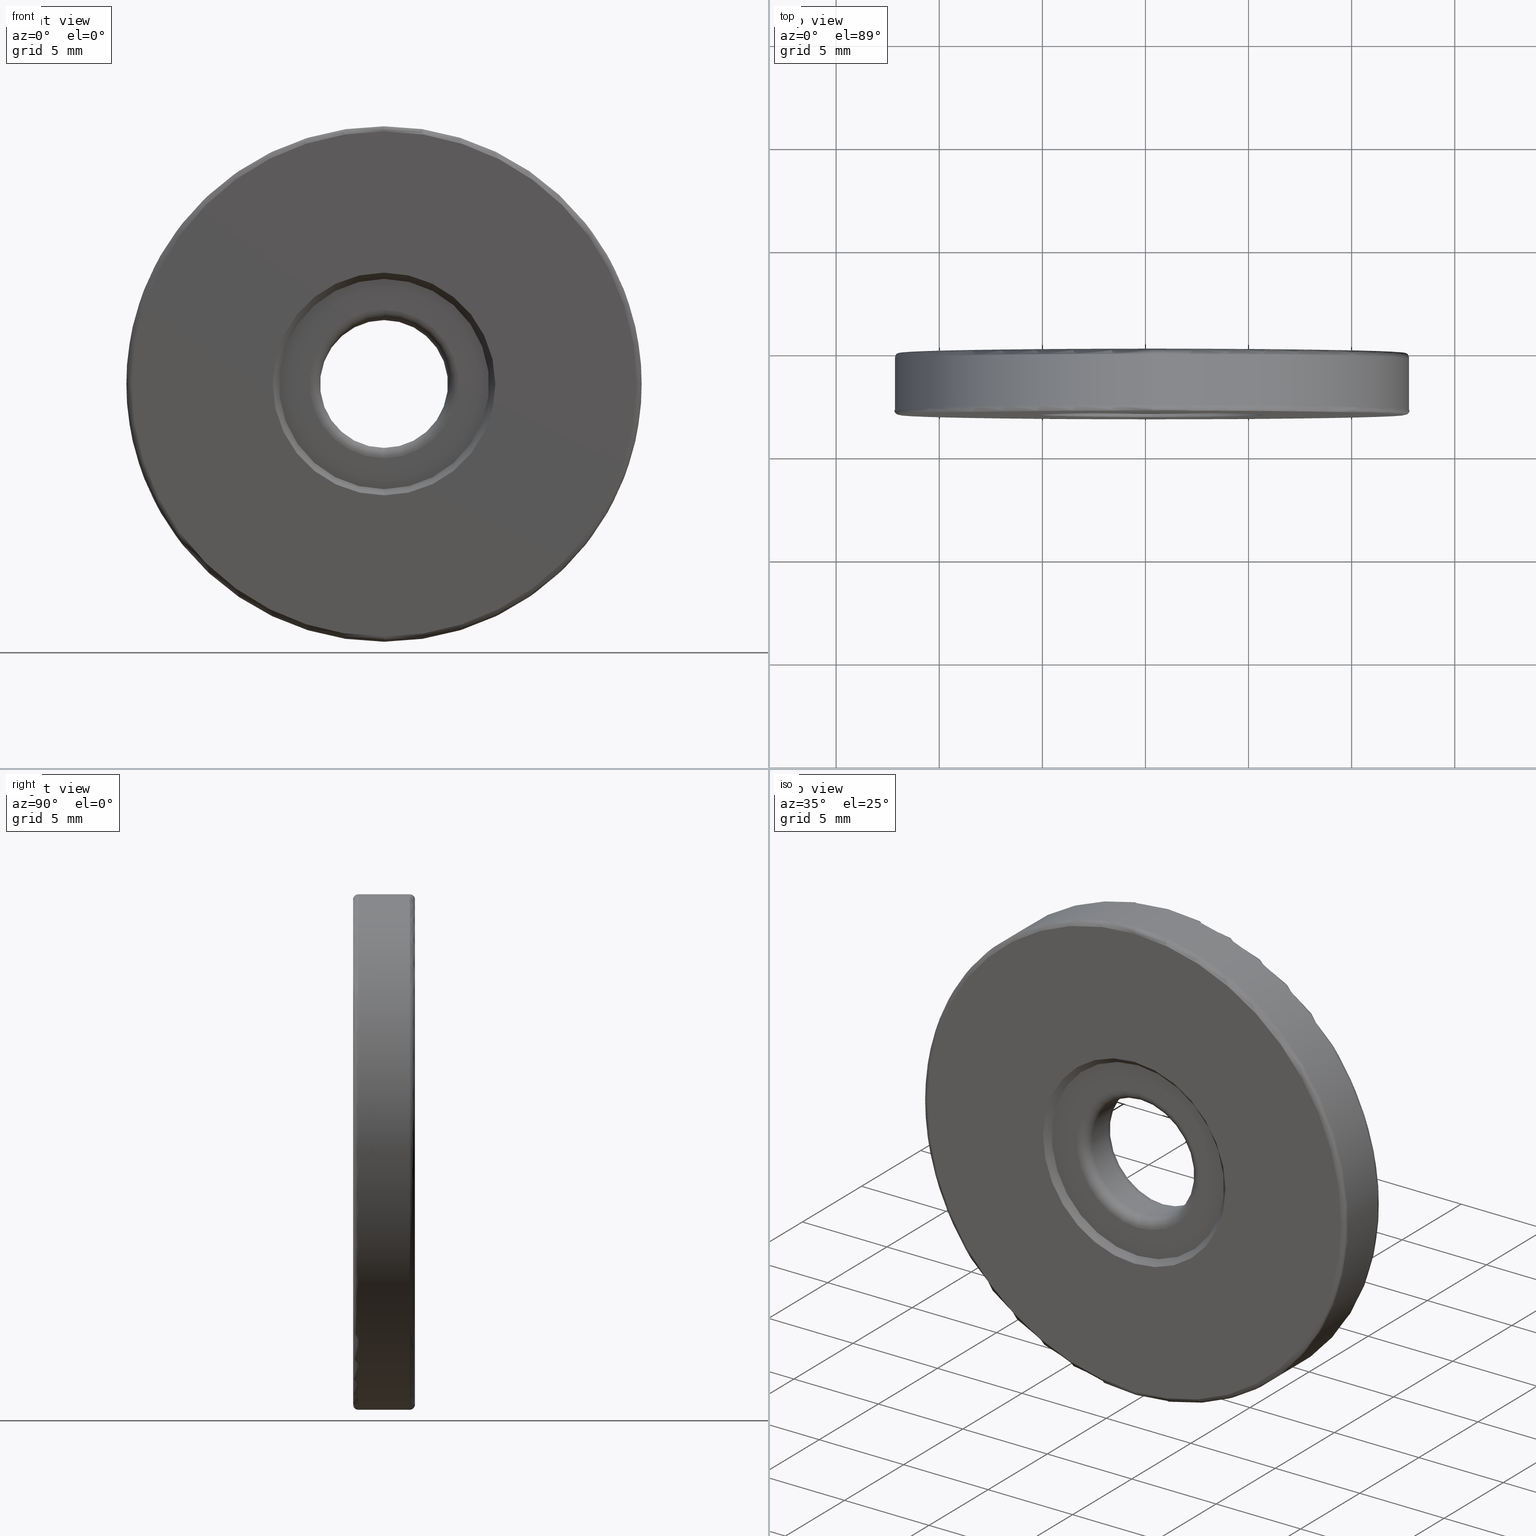
[diagram: canonical four-view strip — front | top / right | iso, engineering-drawing reading convention]
A machine part, canonical four-view strip (front | top / right | iso — engineering-drawing reading convention). The complete STEP part file that produces these views, byte-faithful:
ISO-10303-21;
HEADER;
FILE_DESCRIPTION (( 'STEP AP203' ),
    '1' );
FILE_NAME ('1.4.2.103_ZGH-25-DK3.STEP',
    '2022-04-15T02:59:58',
    ( '' ),
    ( '' ),
    'SwSTEP 2.0',
    'SolidWorks 2021',
    '' );
FILE_SCHEMA (( 'CONFIG_CONTROL_DESIGN' ));
ENDSEC;

DATA;
#1 = ADVANCED_FACE ( 'NONE', ( #280 ), #407, .F. ) ;
#2 = CARTESIAN_POINT ( 'NONE',  ( -4.682026255059964726, -0.8949759769982746915, 25.00000000000000000 ) ) ;
#3 = AXIS2_PLACEMENT_3D ( 'NONE', #2, #376, #240 ) ;
#4 = AXIS2_PLACEMENT_3D ( 'NONE', #454, #137, #366 ) ;
#5 = APPROVAL_PERSON_ORGANIZATION ( #488, #527, #121 ) ;
#6 = EDGE_CURVE ( 'NONE', #191, #129, #316, .T. ) ;
#7 = CARTESIAN_POINT ( 'NONE',  ( -4.682026255059964726, -0.8949759769982746915, 28.60000000000000142 ) ) ;
#8 = DIRECTION ( 'NONE',  ( 0.0000000000000000000, 0.0000000000000000000, -1.000000000000000000 ) ) ;
#9 = VERTEX_POINT ( 'NONE', #367 ) ;
#10 = FACE_BOUND ( 'NONE', #63, .T. ) ;
#11 = DIRECTION ( 'NONE',  ( 0.0000000000000000000, -1.000000000000000000, 0.0000000000000000000 ) ) ;
#12 = PERSON_AND_ORGANIZATION_ROLE ( 'creator' ) ;
#13 = CIRCLE ( 'NONE', #274, 3.599999999999999201 ) ;
#14 = DIRECTION ( 'NONE',  ( 0.0000000000000000000, 0.0000000000000000000, 1.000000000000000000 ) ) ;
#15 = DIRECTION ( 'NONE',  ( 0.0000000000000000000, 1.000000000000000000, 0.0000000000000000000 ) ) ;
#16 = ORIENTED_EDGE ( 'NONE', *, *, #455, .F. ) ;
#17 = EDGE_CURVE ( 'NONE', #451, #68, #478, .T. ) ;
#18 = CARTESIAN_POINT ( 'NONE',  ( -4.682026255059964726, -3.094975976998274536, 25.00000000000000000 ) ) ;
#19 = ORIENTED_EDGE ( 'NONE', *, *, #507, .T. ) ;
#20 = APPROVAL_ROLE ( '' ) ;
#21 = CARTESIAN_POINT ( 'NONE',  ( -4.682026255059964726, -3.094975976998274536, 19.59999999999999787 ) ) ;
#22 = VECTOR ( 'NONE', #591, 1000.000000000000000 ) ;
#23 = VECTOR ( 'NONE', #89, 1000.000000000000114 ) ;
#24 = ORIENTED_EDGE ( 'NONE', *, *, #409, .F. ) ;
#25 = PERSON_AND_ORGANIZATION_ROLE ( 'classification_officer' ) ;
#26 = EDGE_CURVE ( 'NONE', #68, #451, #173, .T. ) ;
#27 = FACE_OUTER_BOUND ( 'NONE', #290, .T. ) ;
#28 = VERTEX_POINT ( 'NONE', #466 ) ;
#29 = CARTESIAN_POINT ( 'NONE',  ( -4.682026255059964726, -0.09497597699827478590, 25.00000000000000000 ) ) ;
#30 = ORIENTED_EDGE ( 'NONE', *, *, #176, .T. ) ;
#31 = CARTESIAN_POINT ( 'NONE',  ( -4.682026255059963837, -2.794975976998274714, 30.10000000000000142 ) ) ;
#32 = CARTESIAN_POINT ( 'NONE',  ( -4.682026255059964726, -0.3449759769982747581, 25.00000000000000000 ) ) ;
#33 = AXIS2_PLACEMENT_3D ( 'NONE', #196, #299, #420 ) ;
#34 = CIRCLE ( 'NONE', #380, 0.5000000000000004441 ) ;
#35 = DIRECTION ( 'NONE',  ( 0.0000000000000000000, -1.000000000000000000, 0.0000000000000000000 ) ) ;
#36 = EDGE_LOOP ( 'NONE', ( #419, #358, #175, #423 ) ) ;
#37 = CARTESIAN_POINT ( 'NONE',  ( -4.682026255059964726, -2.794975976998274714, 21.40000000000000213 ) ) ;
#38 = ORIENTED_EDGE ( 'NONE', *, *, #368, .F. ) ;
#39 = CARTESIAN_POINT ( 'NONE',  ( -4.682026255059964726, -2.294975976998275158, 25.00000000000000000 ) ) ;
#40 = AXIS2_PLACEMENT_3D ( 'NONE', #528, #105, #387 ) ;
#41 = CC_DESIGN_SECURITY_CLASSIFICATION ( #232, ( #75 ) ) ;
#42 = ADVANCED_FACE ( 'NONE', ( #186 ), #163, .T. ) ;
#43 = ORIENTED_EDGE ( 'NONE', *, *, #308, .T. ) ;
#44 = APPROVAL ( #346, 'δָ��' ) ;
#45 = PERSON ( 'δָ��', 'δָ��', 'δָ��', ('δָ��'), ('δָ��'), ('δָ��') ) ;
#46 = ORIENTED_EDGE ( 'NONE', *, *, #139, .F. ) ;
#47 = DIRECTION ( 'NONE',  ( 0.0000000000000000000, -1.000000000000000000, 0.0000000000000000000 ) ) ;
#48 = EDGE_LOOP ( 'NONE', ( #453, #330 ) ) ;
#49 = ADVANCED_FACE ( 'NONE', ( #149 ), #342, .F. ) ;
#50 = VECTOR ( 'NONE', #581, 1000.000000000000114 ) ;
#51 = AXIS2_PLACEMENT_3D ( 'NONE', #91, #285, #526 ) ;
#52 = FACE_OUTER_BOUND ( 'NONE', #553, .T. ) ;
#53 = CARTESIAN_POINT ( 'NONE',  ( -4.682026255059964726, -0.3949759769982746915, 25.00000000000000000 ) ) ;
#54 = ORIENTED_EDGE ( 'NONE', *, *, #212, .T. ) ;
#55 = DIRECTION ( 'NONE',  ( 1.000000000000000000, -0.0000000000000000000, 1.224646799147353207E-16 ) ) ;
#56 = CARTESIAN_POINT ( 'NONE',  ( -4.682026255059964726, -3.094975976998274536, 25.00000000000000000 ) ) ;
#57 = CARTESIAN_POINT ( 'NONE',  ( -4.682026255059964726, -3.094975976998274536, 19.59999999999999787 ) ) ;
#58 = SHAPE_DEFINITION_REPRESENTATION ( #405, #361 ) ;
#59 = OPEN_SHELL ( 'NONE', ( #1, #61, #130, #276, #516, #42, #295, #109, #119, #349, #49, #555, #572, #81, #535, #476, #164, #182, #418, #157 ) ) ;
#60 = CARTESIAN_POINT ( 'NONE',  ( -4.682026255059964726, -3.094975976998274536, 25.00000000000000000 ) ) ;
#61 = ADVANCED_FACE ( 'NONE', ( #146 ), #520, .T. ) ;
#62 =( GEOMETRIC_REPRESENTATION_CONTEXT ( 3 ) GLOBAL_UNCERTAINTY_ASSIGNED_CONTEXT ( ( #561 ) ) GLOBAL_UNIT_ASSIGNED_CONTEXT ( ( #341, #521, #529 ) ) REPRESENTATION_CONTEXT ( 'NONE', 'WORKASPACE' ) );
#63 = EDGE_LOOP ( 'NONE', ( #30, #43 ) ) ;
#64 = CALENDAR_DATE ( 2022, 15, 4 ) ;
#65 = PRODUCT_RELATED_PRODUCT_CATEGORY ( 'detail', '', ( #414 ) ) ;
#66 = ORIENTED_EDGE ( 'NONE', *, *, #268, .F. ) ;
#67 = LINE ( 'NONE', #394, #425 ) ;
#68 = VERTEX_POINT ( 'NONE', #289 ) ;
#69 = EDGE_CURVE ( 'NONE', #393, #9, #97, .T. ) ;
#70 = DATE_AND_TIME ( #590, #194 ) ;
#71 = CYLINDRICAL_SURFACE ( 'NONE', #282, 3.099999999999998757 ) ;
#72 = AXIS2_PLACEMENT_3D ( 'NONE', #586, #190, #571 ) ;
#73 = CIRCLE ( 'NONE', #305, 3.099999999999998757 ) ;
#74 = ORIENTED_EDGE ( 'NONE', *, *, #176, .F. ) ;
#75 = PRODUCT_DEFINITION_FORMATION_WITH_SPECIFIED_SOURCE ( '�κ�', '', #414, .NOT_KNOWN. ) ;
#76 = DIRECTION ( 'NONE',  ( 0.0000000000000000000, 0.0000000000000000000, 1.000000000000000000 ) ) ;
#77 = ORIENTED_EDGE ( 'NONE', *, *, #381, .T. ) ;
#78 = CARTESIAN_POINT ( 'NONE',  ( -4.682026255059964726, -0.3449759769982747581, 37.25000000000000711 ) ) ;
#79 = DIRECTION ( 'NONE',  ( 0.0000000000000000000, 0.0000000000000000000, -1.000000000000000000 ) ) ;
#80 = CARTESIAN_POINT ( 'NONE',  ( -4.682026255059964726, -0.3949759769982755797, 25.00000000000000000 ) ) ;
#81 = ADVANCED_FACE ( 'NONE', ( #296 ), #183, .F. ) ;
#82 = DIRECTION ( 'NONE',  ( -0.0000000000000000000, 1.000000000000000000, -0.0000000000000000000 ) ) ;
#83 = CIRCLE ( 'NONE', #427, 0.2500000000000002220 ) ;
#84 = CC_DESIGN_APPROVAL ( #527, ( #232 ) ) ;
#85 = CARTESIAN_POINT ( 'NONE',  ( -4.682026255059964726, -0.3949759769982746915, 25.00000000000000000 ) ) ;
#86 = ORIENTED_EDGE ( 'NONE', *, *, #278, .F. ) ;
#87 = CC_DESIGN_PERSON_AND_ORGANIZATION_ASSIGNMENT ( #537, #110, ( #75 ) ) ;
#88 = APPLICATION_CONTEXT ( 'configuration controlled 3d designs of mechanical parts and assemblies' ) ;
#89 = DIRECTION ( 'NONE',  ( 8.659560562355009279E-17, 0.7071067811865413555, -0.7071067811865536790 ) ) ;
#90 = DIRECTION ( 'NONE',  ( 0.0000000000000000000, 0.0000000000000000000, -1.000000000000000000 ) ) ;
#91 = CARTESIAN_POINT ( 'NONE',  ( -4.682026255059964726, -0.09497597699827478590, 25.00000000000000000 ) ) ;
#92 = EDGE_LOOP ( 'NONE', ( #614, #600, #431, #328 ) ) ;
#93 = AXIS2_PLACEMENT_3D ( 'NONE', #333, #245, #287 ) ;
#94 = CIRCLE ( 'NONE', #417, 0.5000000000000004441 ) ;
#95 = CC_DESIGN_PERSON_AND_ORGANIZATION_ASSIGNMENT ( #312, #12, ( #75 ) ) ;
#96 = DIRECTION ( 'NONE',  ( 0.0000000000000000000, 0.0000000000000000000, 1.000000000000000000 ) ) ;
#97 = LINE ( 'NONE', #234, #50 ) ;
#98 = FACE_OUTER_BOUND ( 'NONE', #48, .T. ) ;
#99 = CARTESIAN_POINT ( 'NONE',  ( -4.682026255059964726, -0.09497597699827478590, 25.00000000000000000 ) ) ;
#100 = DIRECTION ( 'NONE',  ( 0.0000000000000000000, 0.0000000000000000000, -1.000000000000000000 ) ) ;
#101 = CC_DESIGN_DATE_AND_TIME_ASSIGNMENT ( #597, #117, ( #232 ) ) ;
#102 = ORIENTED_EDGE ( 'NONE', *, *, #219, .T. ) ;
#103 = VECTOR ( 'NONE', #402, 1000.000000000000114 ) ;
#104 = TOROIDAL_SURFACE ( 'NONE', #4, 12.25000000000000000, 0.2500000000000000000 ) ;
#105 = DIRECTION ( 'NONE',  ( 0.0000000000000000000, 1.000000000000000000, 0.0000000000000000000 ) ) ;
#106 = COORDINATED_UNIVERSAL_TIME_OFFSET ( 8, 0, .AHEAD. ) ;
#107 = CARTESIAN_POINT ( 'NONE',  ( -4.682026255059964726, -0.3449759769982747581, 37.50000000000000711 ) ) ;
#108 = VERTEX_POINT ( 'NONE', #385 ) ;
#109 = ADVANCED_FACE ( 'NONE', ( #484 ), #512, .T. ) ;
#110 = PERSON_AND_ORGANIZATION_ROLE ( 'design_supplier' ) ;
#111 = CARTESIAN_POINT ( 'NONE',  ( -4.682026255059964726, -2.794975976998274714, 19.90000000000000213 ) ) ;
#112 = ORIENTED_EDGE ( 'NONE', *, *, #582, .T. ) ;
#113 = AXIS2_PLACEMENT_3D ( 'NONE', #32, #184, #609 ) ;
#114 = CIRCLE ( 'NONE', #458, 5.400000000000005684 ) ;
#115 = DIRECTION ( 'NONE',  ( -0.0000000000000000000, 1.000000000000000000, -0.0000000000000000000 ) ) ;
#116 = EDGE_LOOP ( 'NONE', ( #303, #487 ) ) ;
#117 = DATE_TIME_ROLE ( 'classification_date' ) ;
#118 = CARTESIAN_POINT ( 'NONE',  ( -4.682026255059964726, -0.3949759769982755797, 30.10000000000000142 ) ) ;
#119 = ADVANCED_FACE ( 'NONE', ( #525, #523 ), #536, .T. ) ;
#120 = VERTEX_POINT ( 'NONE', #578 ) ;
#121 = APPROVAL_ROLE ( '' ) ;
#122 = DIRECTION ( 'NONE',  ( 0.0000000000000000000, 1.000000000000000000, 0.0000000000000000000 ) ) ;
#123 = EDGE_LOOP ( 'NONE', ( #258, #506, #568, #551 ) ) ;
#124 = CARTESIAN_POINT ( 'NONE',  ( -4.682026255059964726, -0.3449759769982747581, 25.00000000000000000 ) ) ;
#125 = AXIS2_PLACEMENT_3D ( 'NONE', #56, #532, #430 ) ;
#126 = AXIS2_PLACEMENT_3D ( 'NONE', #177, #374, #279 ) ;
#127 = ORIENTED_EDGE ( 'NONE', *, *, #409, .T. ) ;
#128 = DIRECTION ( 'NONE',  ( 0.0000000000000000000, 0.0000000000000000000, 1.000000000000000000 ) ) ;
#129 = VERTEX_POINT ( 'NONE', #475 ) ;
#130 = ADVANCED_FACE ( 'NONE', ( #472 ), #199, .T. ) ;
#131 = DIRECTION ( 'NONE',  ( 0.0000000000000000000, 0.0000000000000000000, 1.000000000000000000 ) ) ;
#132 = ORIENTED_EDGE ( 'NONE', *, *, #391, .T. ) ;
#133 = DIRECTION ( 'NONE',  ( 0.0000000000000000000, 0.0000000000000000000, 1.000000000000000000 ) ) ;
#134 = CONICAL_SURFACE ( 'NONE', #502, 5.400000000000002132, 0.7853981633974439491 ) ;
#135 = ORIENTED_EDGE ( 'NONE', *, *, #219, .F. ) ;
#136 = CIRCLE ( 'NONE', #353, 5.400000000000005684 ) ;
#137 = DIRECTION ( 'NONE',  ( 0.0000000000000000000, 1.000000000000000000, 0.0000000000000000000 ) ) ;
#138 = ORIENTED_EDGE ( 'NONE', *, *, #507, .F. ) ;
#139 = EDGE_CURVE ( 'NONE', #340, #393, #323, .T. ) ;
#140 = FACE_OUTER_BOUND ( 'NONE', #200, .T. ) ;
#141 = CARTESIAN_POINT ( 'NONE',  ( -4.682026255059964726, -3.094975976998274536, 25.00000000000000000 ) ) ;
#142 = CARTESIAN_POINT ( 'NONE',  ( -4.682026255059964726, -2.794975976998274714, 25.00000000000000000 ) ) ;
#143 = CIRCLE ( 'NONE', #213, 0.2500000000000002220 ) ;
#144 = AXIS2_PLACEMENT_3D ( 'NONE', #269, #569, #271 ) ;
#145 = DIRECTION ( 'NONE',  ( 0.0000000000000000000, 0.0000000000000000000, 1.000000000000000000 ) ) ;
#146 = FACE_OUTER_BOUND ( 'NONE', #36, .T. ) ;
#147 = VERTEX_POINT ( 'NONE', #383 ) ;
#148 = PLANE ( 'NONE',  #51 ) ;
#149 = FACE_OUTER_BOUND ( 'NONE', #92, .T. ) ;
#150 = ORIENTED_EDGE ( 'NONE', *, *, #548, .F. ) ;
#151 = DIRECTION ( 'NONE',  ( -0.0000000000000000000, -1.000000000000000000, -0.0000000000000000000 ) ) ;
#152 = APPROVAL ( #306, 'δָ��' ) ;
#153 = CARTESIAN_POINT ( 'NONE',  ( -4.682026255059964726, -3.094975976998274536, 25.00000000000000000 ) ) ;
#154 = VECTOR ( 'NONE', #254, 1000.000000000000114 ) ;
#155 = CIRCLE ( 'NONE', #574, 3.099999999999998757 ) ;
#156 = DIRECTION ( 'NONE',  ( -0.0000000000000000000, -1.000000000000000000, -0.0000000000000000000 ) ) ;
#157 = ADVANCED_FACE ( 'NONE', ( #292 ), #134, .F. ) ;
#158 = DATE_TIME_ROLE ( 'creation_date' ) ;
#159 = CARTESIAN_POINT ( 'NONE',  ( -4.682026255059962949, -2.844975976998274536, 12.75000000000000178 ) ) ;
#160 = DIRECTION ( 'NONE',  ( 0.0000000000000000000, 0.0000000000000000000, 1.000000000000000000 ) ) ;
#161 = VERTEX_POINT ( 'NONE', #379 ) ;
#162 = APPROVAL_STATUS ( 'not_yet_approved' ) ;
#163 = TOROIDAL_SURFACE ( 'NONE', #3, 3.600000000000000089, 0.5000000000000000000 ) ;
#164 = ADVANCED_FACE ( 'NONE', ( #480 ), #576, .T. ) ;
#165 = DIRECTION ( 'NONE',  ( 0.0000000000000000000, 1.000000000000000000, 0.0000000000000000000 ) ) ;
#166 = ORIENTED_EDGE ( 'NONE', *, *, #339, .F. ) ;
#167 = APPROVAL_DATE_TIME ( #449, #152 ) ;
#168 = DIRECTION ( 'NONE',  ( 0.0000000000000000000, 0.0000000000000000000, -1.000000000000000000 ) ) ;
#169 = ORIENTED_EDGE ( 'NONE', *, *, #139, .T. ) ;
#170 = LINE ( 'NONE', #118, #103 ) ;
#171 = EDGE_LOOP ( 'NONE', ( #283, #482, #477, #442 ) ) ;
#172 = DIRECTION ( 'NONE',  ( 0.0000000000000000000, 0.0000000000000000000, 1.000000000000000000 ) ) ;
#173 = CIRCLE ( 'NONE', #437, 3.599999999999999201 ) ;
#174 = CIRCLE ( 'NONE', #144, 3.099999999999998757 ) ;
#175 = ORIENTED_EDGE ( 'NONE', *, *, #197, .F. ) ;
#176 = EDGE_CURVE ( 'NONE', #606, #360, #530, .T. ) ;
#177 = CARTESIAN_POINT ( 'NONE',  ( -4.682026255059964726, -2.294975976998275158, 25.00000000000000000 ) ) ;
#178 = CC_DESIGN_PERSON_AND_ORGANIZATION_ASSIGNMENT ( #587, #540, ( #441 ) ) ;
#179 = DIRECTION ( 'NONE',  ( -1.000000000000000000, 0.0000000000000000000, 0.0000000000000000000 ) ) ;
#180 = ORIENTED_EDGE ( 'NONE', *, *, #6, .T. ) ;
#181 = CARTESIAN_POINT ( 'NONE',  ( -4.682026255059964726, -0.09497597699827478590, 37.25000000000000711 ) ) ;
#182 = ADVANCED_FACE ( 'NONE', ( #345 ), #564, .T. ) ;
#183 = CONICAL_SURFACE ( 'NONE', #93, 5.100000000000000533, 0.7853981633974570498 ) ;
#184 = DIRECTION ( 'NONE',  ( -0.0000000000000000000, -1.000000000000000000, -0.0000000000000000000 ) ) ;
#185 = DIRECTION ( 'NONE',  ( 0.0000000000000000000, 0.0000000000000000000, -1.000000000000000000 ) ) ;
#186 = FACE_OUTER_BOUND ( 'NONE', #365, .T. ) ;
#187 = DIRECTION ( 'NONE',  ( 0.0000000000000000000, 0.0000000000000000000, -1.000000000000000000 ) ) ;
#188 = CARTESIAN_POINT ( 'NONE',  ( -4.682026255059964726, -2.294975976998275158, 25.00000000000000000 ) ) ;
#189 = DIRECTION ( 'NONE',  ( 0.0000000000000000000, 1.000000000000000000, 0.0000000000000000000 ) ) ;
#190 = DIRECTION ( 'NONE',  ( -0.0000000000000000000, 1.000000000000000000, -0.0000000000000000000 ) ) ;
#191 = VERTEX_POINT ( 'NONE', #107 ) ;
#192 = AXIS2_PLACEMENT_3D ( 'NONE', #18, #541, #355 ) ;
#193 = EDGE_CURVE ( 'NONE', #340, #255, #399, .T. ) ;
#194 = LOCAL_TIME ( 10, 59, 58.00000000000000000, #106 ) ;
#195 = PERSON_AND_ORGANIZATION_ROLE ( 'design_owner' ) ;
#196 = CARTESIAN_POINT ( 'NONE',  ( -4.682026255059964726, -2.844975976998274536, 25.00000000000000000 ) ) ;
#197 = EDGE_CURVE ( 'NONE', #300, #311, #388, .T. ) ;
#198 = DIRECTION ( 'NONE',  ( 0.0000000000000000000, 0.0000000000000000000, 1.000000000000000000 ) ) ;
#199 = CYLINDRICAL_SURFACE ( 'NONE', #396, 12.50000000000000000 ) ;
#200 = EDGE_LOOP ( 'NONE', ( #515, #456 ) ) ;
#201 = DIRECTION ( 'NONE',  ( 0.0000000000000000000, 0.0000000000000000000, 1.000000000000000000 ) ) ;
#202 = EDGE_CURVE ( 'NONE', #147, #509, #599, .T. ) ;
#203 = AXIS2_PLACEMENT_3D ( 'NONE', #350, #165, #359 ) ;
#204 = TOROIDAL_SURFACE ( 'NONE', #126, 3.600000000000000089, 0.5000000000000000000 ) ;
#205 = CALENDAR_DATE ( 2022, 15, 4 ) ;
#206 = CARTESIAN_POINT ( 'NONE',  ( -4.682026255059964726, -0.09497597699827478590, 25.00000000000000000 ) ) ;
#207 = DIRECTION ( 'NONE',  ( 1.000000000000000000, -0.0000000000000000000, 1.224646799147353207E-16 ) ) ;
#208 = ORIENTED_EDGE ( 'NONE', *, *, #428, .T. ) ;
#209 = CALENDAR_DATE ( 2022, 15, 4 ) ;
#210 = DIRECTION ( 'NONE',  ( 0.0000000000000000000, 0.0000000000000000000, 1.000000000000000000 ) ) ;
#211 = EDGE_LOOP ( 'NONE', ( #444, #539, #595, #16 ) ) ;
#212 = EDGE_CURVE ( 'NONE', #9, #255, #457, .T. ) ;
#213 = AXIS2_PLACEMENT_3D ( 'NONE', #547, #489, #168 ) ;
#214 = PERSON_AND_ORGANIZATION ( #45, #481 ) ;
#215 = CIRCLE ( 'NONE', #565, 5.400000000000002132 ) ;
#216 = ORIENTED_EDGE ( 'NONE', *, *, #247, .F. ) ;
#217 = DIRECTION ( 'NONE',  ( -0.0000000000000000000, 1.000000000000000000, -0.0000000000000000000 ) ) ;
#218 = CARTESIAN_POINT ( 'NONE',  ( -4.682026255059964726, -2.844975976998274536, 37.25000000000000711 ) ) ;
#219 = EDGE_CURVE ( 'NONE', #129, #319, #143, .T. ) ;
#220 = EDGE_LOOP ( 'NONE', ( #400, #54 ) ) ;
#221 = DIRECTION ( 'NONE',  ( 0.0000000000000000000, 0.0000000000000000000, 1.000000000000000000 ) ) ;
#222 = CIRCLE ( 'NONE', #542, 0.2500000000000002220 ) ;
#223 = AXIS2_PLACEMENT_3D ( 'NONE', #85, #460, #76 ) ;
#224 = ORIENTED_EDGE ( 'NONE', *, *, #375, .F. ) ;
#225 = CARTESIAN_POINT ( 'NONE',  ( -4.682026255059963837, -0.3949759769982755797, 19.90000000000000213 ) ) ;
#226 = CARTESIAN_POINT ( 'NONE',  ( -4.682026255059964726, -3.094975976998274536, 25.00000000000000000 ) ) ;
#227 = FACE_BOUND ( 'NONE', #220, .T. ) ;
#228 = CARTESIAN_POINT ( 'NONE',  ( -4.682026255059964726, -3.094975976998274536, 25.00000000000000000 ) ) ;
#229 = AXIS2_PLACEMENT_3D ( 'NONE', #60, #122, #440 ) ;
#230 = EDGE_LOOP ( 'NONE', ( #356, #337 ) ) ;
#231 = AXIS2_PLACEMENT_3D ( 'NONE', #324, #556, #221 ) ;
#232 = SECURITY_CLASSIFICATION ( '', '', #499 ) ;
#233 = CARTESIAN_POINT ( 'NONE',  ( 0.0000000000000000000, 0.0000000000000000000, 0.0000000000000000000 ) ) ;
#234 = CARTESIAN_POINT ( 'NONE',  ( -4.682026255059963837, -3.094975976998274536, 30.40000000000000213 ) ) ;
#235 = FACE_OUTER_BOUND ( 'NONE', #557, .T. ) ;
#236 = DIRECTION ( 'NONE',  ( 0.0000000000000000000, 0.0000000000000000000, -1.000000000000000000 ) ) ;
#237 = EDGE_CURVE ( 'NONE', #603, #534, #170, .T. ) ;
#238 = ORIENTED_EDGE ( 'NONE', *, *, #259, .F. ) ;
#239 = FACE_BOUND ( 'NONE', #230, .T. ) ;
#240 = DIRECTION ( 'NONE',  ( 0.0000000000000000000, 0.0000000000000000000, 1.000000000000000000 ) ) ;
#241 = AXIS2_PLACEMENT_3D ( 'NONE', #188, #47, #236 ) ;
#242 = ORIENTED_EDGE ( 'NONE', *, *, #202, .T. ) ;
#243 = CIRCLE ( 'NONE', #438, 0.2500000000000002220 ) ;
#244 = CONICAL_SURFACE ( 'NONE', #325, 5.100000000000000533, 0.7853981633974570498 ) ;
#245 = DIRECTION ( 'NONE',  ( 0.0000000000000000000, 1.000000000000000000, 0.0000000000000000000 ) ) ;
#246 = ORIENTED_EDGE ( 'NONE', *, *, #398, .T. ) ;
#247 = EDGE_CURVE ( 'NONE', #463, #319, #293, .T. ) ;
#248 = PERSON_AND_ORGANIZATION ( #45, #481 ) ;
#249 = CARTESIAN_POINT ( 'NONE',  ( -4.682026255059964726, -0.09497597699827478590, 25.00000000000000000 ) ) ;
#250 = DATE_AND_TIME ( #209, #363 ) ;
#251 = CARTESIAN_POINT ( 'NONE',  ( -4.682026255059962949, -2.844975976998274536, 37.50000000000000711 ) ) ;
#252 = AXIS2_PLACEMENT_3D ( 'NONE', #99, #486, #336 ) ;
#253 = AXIS2_PLACEMENT_3D ( 'NONE', #604, #371, #410 ) ;
#254 = DIRECTION ( 'NONE',  ( 0.0000000000000000000, -0.7071067811865505703, -0.7071067811865444641 ) ) ;
#255 = VERTEX_POINT ( 'NONE', #57 ) ;
#256 = COORDINATED_UNIVERSAL_TIME_OFFSET ( 8, 0, .AHEAD. ) ;
#257 = FACE_OUTER_BOUND ( 'NONE', #470, .T. ) ;
#258 = ORIENTED_EDGE ( 'NONE', *, *, #368, .T. ) ;
#259 = EDGE_CURVE ( 'NONE', #319, #463, #262, .T. ) ;
#260 = CARTESIAN_POINT ( 'NONE',  ( -4.682026255059964726, -0.8949759769982746915, 25.00000000000000000 ) ) ;
#261 = ORIENTED_EDGE ( 'NONE', *, *, #436, .F. ) ;
#262 = CIRCLE ( 'NONE', #490, 12.25000000000000355 ) ;
#263 = COORDINATED_UNIVERSAL_TIME_OFFSET ( 8, 0, .AHEAD. ) ;
#264 = VECTOR ( 'NONE', #338, 1000.000000000000000 ) ;
#265 = LOCAL_TIME ( 10, 59, 58.00000000000000000, #256 ) ;
#266 = DIRECTION ( 'NONE',  ( 0.0000000000000000000, 1.000000000000000000, 0.0000000000000000000 ) ) ;
#267 = ORIENTED_EDGE ( 'NONE', *, *, #315, .F. ) ;
#268 = EDGE_CURVE ( 'NONE', #161, #311, #222, .T. ) ;
#269 = CARTESIAN_POINT ( 'NONE',  ( -4.682026255059964726, -2.294975976998275158, 25.00000000000000000 ) ) ;
#270 = ORIENTED_EDGE ( 'NONE', *, *, #193, .F. ) ;
#271 = DIRECTION ( 'NONE',  ( 0.0000000000000000000, 0.0000000000000000000, -1.000000000000000000 ) ) ;
#272 = ORIENTED_EDGE ( 'NONE', *, *, #237, .F. ) ;
#273 = DIRECTION ( 'NONE',  ( 0.0000000000000000000, 1.000000000000000000, 0.0000000000000000000 ) ) ;
#274 = AXIS2_PLACEMENT_3D ( 'NONE', #497, #588, #302 ) ;
#275 = DIRECTION ( 'NONE',  ( 0.0000000000000000000, 0.0000000000000000000, -1.000000000000000000 ) ) ;
#276 = ADVANCED_FACE ( 'NONE', ( #27 ), #304, .T. ) ;
#277 = CARTESIAN_POINT ( 'NONE',  ( -4.682026255059964726, -0.3449759769982747581, 25.00000000000000000 ) ) ;
#278 = EDGE_CURVE ( 'NONE', #108, #161, #378, .T. ) ;
#279 = DIRECTION ( 'NONE',  ( 0.0000000000000000000, 0.0000000000000000000, -1.000000000000000000 ) ) ;
#280 = FACE_OUTER_BOUND ( 'NONE', #518, .T. ) ;
#281 = DIRECTION ( 'NONE',  ( 0.0000000000000000000, 1.000000000000000000, 0.0000000000000000000 ) ) ;
#282 = AXIS2_PLACEMENT_3D ( 'NONE', #392, #115, #318 ) ;
#283 = ORIENTED_EDGE ( 'NONE', *, *, #69, .F. ) ;
#284 = CIRCLE ( 'NONE', #223, 5.100000000000000533 ) ;
#285 = DIRECTION ( 'NONE',  ( 0.0000000000000000000, 1.000000000000000000, 0.0000000000000000000 ) ) ;
#286 = EDGE_CURVE ( 'NONE', #311, #300, #343, .T. ) ;
#287 = DIRECTION ( 'NONE',  ( 0.0000000000000000000, 0.0000000000000000000, 1.000000000000000000 ) ) ;
#288 = CC_DESIGN_PERSON_AND_ORGANIZATION_ASSIGNMENT ( #570, #195, ( #414 ) ) ;
#289 = CARTESIAN_POINT ( 'NONE',  ( -4.682026255059962949, -2.794975976998274714, 28.60000000000000142 ) ) ;
#290 = EDGE_LOOP ( 'NONE', ( #38, #102, #216, #138 ) ) ;
#291 = DIRECTION ( 'NONE',  ( 0.0000000000000000000, -0.0000000000000000000, 1.000000000000000000 ) ) ;
#292 = FACE_OUTER_BOUND ( 'NONE', #171, .T. ) ;
#293 = CIRCLE ( 'NONE', #584, 12.25000000000000355 ) ;
#294 = CIRCLE ( 'NONE', #585, 0.5000000000000004441 ) ;
#295 = ADVANCED_FACE ( 'NONE', ( #390 ), #71, .F. ) ;
#296 = FACE_OUTER_BOUND ( 'NONE', #211, .T. ) ;
#297 = ORIENTED_EDGE ( 'NONE', *, *, #286, .F. ) ;
#298 = APPROVAL_DATE_TIME ( #250, #44 ) ;
#299 = DIRECTION ( 'NONE',  ( 0.0000000000000000000, 1.000000000000000000, 0.0000000000000000000 ) ) ;
#300 = VERTEX_POINT ( 'NONE', #251 ) ;
#301 = PERSON_AND_ORGANIZATION ( #45, #481 ) ;
#302 = DIRECTION ( 'NONE',  ( 0.0000000000000000000, 0.0000000000000000000, 1.000000000000000000 ) ) ;
#303 = ORIENTED_EDGE ( 'NONE', *, *, #17, .T. ) ;
#304 = TOROIDAL_SURFACE ( 'NONE', #615, 12.25000000000000000, 0.2500000000000000000 ) ;
#305 = AXIS2_PLACEMENT_3D ( 'NONE', #446, #538, #307 ) ;
#306 = APPROVAL_STATUS ( 'not_yet_approved' ) ;
#307 = DIRECTION ( 'NONE',  ( 0.0000000000000000000, 0.0000000000000000000, 1.000000000000000000 ) ) ;
#308 = EDGE_CURVE ( 'NONE', #360, #606, #13, .T. ) ;
#309 = ORIENTED_EDGE ( 'NONE', *, *, #428, .F. ) ;
#310 = DIRECTION ( 'NONE',  ( 0.0000000000000000000, 0.0000000000000000000, -1.000000000000000000 ) ) ;
#311 = VERTEX_POINT ( 'NONE', #450 ) ;
#312 = PERSON_AND_ORGANIZATION ( #45, #481 ) ;
#313 = CARTESIAN_POINT ( 'NONE',  ( -4.682026255059964726, -3.094975976998274536, 21.90000000000000213 ) ) ;
#314 = EDGE_LOOP ( 'NONE', ( #66, #86, #246, #297 ) ) ;
#315 = EDGE_CURVE ( 'NONE', #326, #28, #67, .T. ) ;
#316 = CIRCLE ( 'NONE', #113, 12.50000000000000355 ) ;
#317 = AXIS2_PLACEMENT_3D ( 'NONE', #332, #384, #96 ) ;
#318 = DIRECTION ( 'NONE',  ( 0.0000000000000000000, 0.0000000000000000000, 1.000000000000000000 ) ) ;
#319 = VERTEX_POINT ( 'NONE', #601 ) ;
#320 = CARTESIAN_POINT ( 'NONE',  ( -4.682026255059963837, -0.09497597699827478590, 19.59999999999999432 ) ) ;
#321 = ORIENTED_EDGE ( 'NONE', *, *, #331, .F. ) ;
#322 = DIRECTION ( 'NONE',  ( -0.0000000000000000000, 1.000000000000000000, -0.0000000000000000000 ) ) ;
#323 = CIRCLE ( 'NONE', #72, 5.100000000000000533 ) ;
#324 = CARTESIAN_POINT ( 'NONE',  ( -4.682026255059964726, -2.794975976998274714, 25.00000000000000000 ) ) ;
#325 = AXIS2_PLACEMENT_3D ( 'NONE', #80, #273, #377 ) ;
#326 = VERTEX_POINT ( 'NONE', #347 ) ;
#327 = FACE_OUTER_BOUND ( 'NONE', #592, .T. ) ;
#328 = ORIENTED_EDGE ( 'NONE', *, *, #339, .T. ) ;
#329 = CARTESIAN_POINT ( 'NONE',  ( -4.682026255059963837, -0.8949759769982746915, 21.40000000000000213 ) ) ;
#330 = ORIENTED_EDGE ( 'NONE', *, *, #259, .T. ) ;
#331 = EDGE_CURVE ( 'NONE', #509, #28, #155, .T. ) ;
#332 = CARTESIAN_POINT ( 'NONE',  ( -4.682026255059964726, -0.8949759769982746915, 25.00000000000000000 ) ) ;
#333 = CARTESIAN_POINT ( 'NONE',  ( -4.682026255059964726, -0.3949759769982755797, 25.00000000000000000 ) ) ;
#334 = AXIS2_PLACEMENT_3D ( 'NONE', #39, #35, #185 ) ;
#335 = DIRECTION ( 'NONE',  ( 1.000000000000000000, 0.0000000000000000000, 0.0000000000000000000 ) ) ;
#336 = DIRECTION ( 'NONE',  ( 0.0000000000000000000, 0.0000000000000000000, -1.000000000000000000 ) ) ;
#337 = ORIENTED_EDGE ( 'NONE', *, *, #455, .T. ) ;
#338 = DIRECTION ( 'NONE',  ( -0.0000000000000000000, -1.000000000000000000, -0.0000000000000000000 ) ) ;
#339 = EDGE_CURVE ( 'NONE', #28, #509, #73, .T. ) ;
#340 = VERTEX_POINT ( 'NONE', #111 ) ;
#341 =( LENGTH_UNIT ( ) NAMED_UNIT ( * ) SI_UNIT ( .MILLI., .METRE. ) );
#342 = CYLINDRICAL_SURFACE ( 'NONE', #125, 3.099999999999998757 ) ;
#343 = CIRCLE ( 'NONE', #467, 12.50000000000000355 ) ;
#344 = ORIENTED_EDGE ( 'NONE', *, *, #464, .T. ) ;
#345 = FACE_OUTER_BOUND ( 'NONE', #314, .T. ) ;
#346 = APPROVAL_STATUS ( 'not_yet_approved' ) ;
#347 = CARTESIAN_POINT ( 'NONE',  ( -4.682026255059964726, -2.294975976998275158, 28.10000000000000142 ) ) ;
#348 = ORIENTED_EDGE ( 'NONE', *, *, #495, .F. ) ;
#349 = ADVANCED_FACE ( 'NONE', ( #257 ), #204, .T. ) ;
#350 = CARTESIAN_POINT ( 'NONE',  ( -4.682026255059964726, -2.844975976998274536, 25.00000000000000000 ) ) ;
#351 = ORIENTED_EDGE ( 'NONE', *, *, #582, .F. ) ;
#352 = AXIS2_PLACEMENT_3D ( 'NONE', #617, #322, #275 ) ;
#353 = AXIS2_PLACEMENT_3D ( 'NONE', #514, #517, #128 ) ;
#354 = LOCAL_TIME ( 10, 59, 58.00000000000000000, #493 ) ;
#355 = DIRECTION ( 'NONE',  ( 0.0000000000000000000, 0.0000000000000000000, 1.000000000000000000 ) ) ;
#356 = ORIENTED_EDGE ( 'NONE', *, *, #495, .T. ) ;
#357 = CARTESIAN_POINT ( 'NONE',  ( -4.682026255059964726, -0.09497597699827478590, 25.00000000000000000 ) ) ;
#358 = ORIENTED_EDGE ( 'NONE', *, *, #268, .T. ) ;
#359 = DIRECTION ( 'NONE',  ( 0.0000000000000000000, 0.0000000000000000000, 1.000000000000000000 ) ) ;
#360 = VERTEX_POINT ( 'NONE', #593 ) ;
#361 = MANIFOLD_SURFACE_SHAPE_REPRESENTATION ( '1.4.2.103_ZGH-25-DK3', ( #468, #575 ), #62 ) ;
#362 = AXIS2_PLACEMENT_3D ( 'NONE', #142, #11, #422 ) ;
#363 = LOCAL_TIME ( 10, 59, 58.00000000000000000, #439 ) ;
#364 = DIRECTION ( 'NONE',  ( 0.0000000000000000000, 1.000000000000000000, 0.0000000000000000000 ) ) ;
#365 = EDGE_LOOP ( 'NONE', ( #549, #447, #166, #351 ) ) ;
#366 = DIRECTION ( 'NONE',  ( 0.0000000000000000000, 0.0000000000000000000, 1.000000000000000000 ) ) ;
#367 = CARTESIAN_POINT ( 'NONE',  ( -4.682026255059963837, -3.094975976998274536, 30.40000000000000213 ) ) ;
#368 = EDGE_CURVE ( 'NONE', #129, #191, #554, .T. ) ;
#369 = DIRECTION ( 'NONE',  ( 0.0000000000000000000, -0.0000000000000000000, 1.000000000000000000 ) ) ;
#370 = ORIENTED_EDGE ( 'NONE', *, *, #602, .F. ) ;
#371 = DIRECTION ( 'NONE',  ( -0.0000000000000000000, -1.000000000000000000, -0.0000000000000000000 ) ) ;
#372 = AXIS2_PLACEMENT_3D ( 'NONE', #611, #404, #133 ) ;
#373 = ORIENTED_EDGE ( 'NONE', *, *, #485, .F. ) ;
#374 = DIRECTION ( 'NONE',  ( 0.0000000000000000000, -1.000000000000000000, 0.0000000000000000000 ) ) ;
#375 = EDGE_CURVE ( 'NONE', #147, #326, #469, .T. ) ;
#376 = DIRECTION ( 'NONE',  ( 0.0000000000000000000, 1.000000000000000000, 0.0000000000000000000 ) ) ;
#377 = DIRECTION ( 'NONE',  ( 0.0000000000000000000, 0.0000000000000000000, 1.000000000000000000 ) ) ;
#378 = CIRCLE ( 'NONE', #192, 12.25000000000000355 ) ;
#379 = CARTESIAN_POINT ( 'NONE',  ( -4.682026255059962949, -3.094975976998274536, 12.75000000000000178 ) ) ;
#380 = AXIS2_PLACEMENT_3D ( 'NONE', #416, #465, #452 ) ;
#381 = EDGE_CURVE ( 'NONE', #120, #496, #562, .T. ) ;
#382 = CARTESIAN_POINT ( 'NONE',  ( -4.682026255059962949, -0.09497597699827478590, 37.50000000000000711 ) ) ;
#383 = CARTESIAN_POINT ( 'NONE',  ( -4.682026255059964726, -2.294975976998275158, 21.90000000000000213 ) ) ;
#384 = DIRECTION ( 'NONE',  ( 0.0000000000000000000, 1.000000000000000000, 0.0000000000000000000 ) ) ;
#385 = CARTESIAN_POINT ( 'NONE',  ( -4.682026255059964726, -3.094975976998274536, 37.25000000000000711 ) ) ;
#386 = PLANE ( 'NONE',  #448 ) ;
#387 = DIRECTION ( 'NONE',  ( 0.0000000000000000000, 0.0000000000000000000, 1.000000000000000000 ) ) ;
#388 = CIRCLE ( 'NONE', #203, 12.50000000000000355 ) ;
#389 = APPROVAL_DATE_TIME ( #401, #527 ) ;
#390 = FACE_OUTER_BOUND ( 'NONE', #579, .T. ) ;
#391 = EDGE_CURVE ( 'NONE', #451, #147, #94, .T. ) ;
#392 = CARTESIAN_POINT ( 'NONE',  ( -4.682026255059964726, -3.094975976998274536, 25.00000000000000000 ) ) ;
#393 = VERTEX_POINT ( 'NONE', #31 ) ;
#394 = CARTESIAN_POINT ( 'NONE',  ( -4.682026255059964726, -3.094975976998274536, 28.10000000000000142 ) ) ;
#395 = ORIENTED_EDGE ( 'NONE', *, *, #331, .T. ) ;
#396 = AXIS2_PLACEMENT_3D ( 'NONE', #249, #156, #8 ) ;
#397 = AXIS2_PLACEMENT_3D ( 'NONE', #329, #55, #187 ) ;
#398 = EDGE_CURVE ( 'NONE', #108, #300, #243, .T. ) ;
#399 = LINE ( 'NONE', #21, #154 ) ;
#400 = ORIENTED_EDGE ( 'NONE', *, *, #563, .T. ) ;
#401 = DATE_AND_TIME ( #64, #354 ) ;
#402 = DIRECTION ( 'NONE',  ( 0.0000000000000000000, 0.7071067811865413555, 0.7071067811865536790 ) ) ;
#403 = EDGE_LOOP ( 'NONE', ( #261, #77, #348, #272 ) ) ;
#404 = DIRECTION ( 'NONE',  ( 0.0000000000000000000, 1.000000000000000000, 0.0000000000000000000 ) ) ;
#405 = PRODUCT_DEFINITION_SHAPE ( 'NONE', 'NONE',  #441 ) ;
#406 = ORIENTED_EDGE ( 'NONE', *, *, #436, .T. ) ;
#407 = CONICAL_SURFACE ( 'NONE', #594, 5.400000000000002132, 0.7853981633974439491 ) ;
#408 = DIRECTION ( 'NONE',  ( 0.0000000000000000000, 0.0000000000000000000, 1.000000000000000000 ) ) ;
#409 = EDGE_CURVE ( 'NONE', #326, #147, #174, .T. ) ;
#410 = DIRECTION ( 'NONE',  ( 0.0000000000000000000, 0.0000000000000000000, 1.000000000000000000 ) ) ;
#411 = ORIENTED_EDGE ( 'NONE', *, *, #69, .T. ) ;
#412 = DIRECTION ( 'NONE',  ( 0.0000000000000000000, 0.0000000000000000000, 1.000000000000000000 ) ) ;
#413 = ORIENTED_EDGE ( 'NONE', *, *, #17, .F. ) ;
#414 = PRODUCT ( '1.4.2.103_ZGH-25-DK3', '1.4.2.103_ZGH-25-DK3', '', ( #421 ) ) ;
#415 = AXIS2_PLACEMENT_3D ( 'NONE', #53, #426, #201 ) ;
#416 = CARTESIAN_POINT ( 'NONE',  ( -4.682026255059963837, -2.294975976998275158, 28.60000000000000142 ) ) ;
#417 = AXIS2_PLACEMENT_3D ( 'NONE', #559, #462, #131 ) ;
#418 = ADVANCED_FACE ( 'NONE', ( #140, #227 ), #505, .F. ) ;
#419 = ORIENTED_EDGE ( 'NONE', *, *, #445, .F. ) ;
#420 = DIRECTION ( 'NONE',  ( 0.0000000000000000000, 0.0000000000000000000, 1.000000000000000000 ) ) ;
#421 = MECHANICAL_CONTEXT ( 'NONE', #605, 'mechanical' ) ;
#422 = DIRECTION ( 'NONE',  ( 0.0000000000000000000, 0.0000000000000000000, 1.000000000000000000 ) ) ;
#423 = ORIENTED_EDGE ( 'NONE', *, *, #398, .F. ) ;
#424 = CARTESIAN_POINT ( 'NONE',  ( -4.682026255059964726, -0.3949759769982746915, 25.00000000000000000 ) ) ;
#425 = VECTOR ( 'NONE', #217, 1000.000000000000000 ) ;
#426 = DIRECTION ( 'NONE',  ( -0.0000000000000000000, -1.000000000000000000, -0.0000000000000000000 ) ) ;
#427 = AXIS2_PLACEMENT_3D ( 'NONE', #78, #508, #408 ) ;
#428 = EDGE_CURVE ( 'NONE', #68, #326, #34, .T. ) ;
#429 = APPLICATION_PROTOCOL_DEFINITION ( 'international standard', 'config_control_design', 1994, #605 ) ;
#430 = DIRECTION ( 'NONE',  ( 0.0000000000000000000, 0.0000000000000000000, 1.000000000000000000 ) ) ;
#431 = ORIENTED_EDGE ( 'NONE', *, *, #315, .T. ) ;
#432 = CARTESIAN_POINT ( 'NONE',  ( -4.682026255059964726, -0.09497597699827478590, 30.40000000000000568 ) ) ;
#433 = DIRECTION ( 'NONE',  ( -0.0000000000000000000, -1.000000000000000000, -0.0000000000000000000 ) ) ;
#434 = CALENDAR_DATE ( 2022, 15, 4 ) ;
#435 = DIRECTION ( 'NONE',  ( 0.0000000000000000000, 1.000000000000000000, 0.0000000000000000000 ) ) ;
#436 = EDGE_CURVE ( 'NONE', #120, #603, #284, .T. ) ;
#437 = AXIS2_PLACEMENT_3D ( 'NONE', #511, #82, #90 ) ;
#438 = AXIS2_PLACEMENT_3D ( 'NONE', #218, #179, #412 ) ;
#439 = COORDINATED_UNIVERSAL_TIME_OFFSET ( 8, 0, .AHEAD. ) ;
#440 = DIRECTION ( 'NONE',  ( 0.0000000000000000000, 0.0000000000000000000, 1.000000000000000000 ) ) ;
#441 = PRODUCT_DEFINITION ( 'δ֪', '', #75, #607 ) ;
#442 = ORIENTED_EDGE ( 'NONE', *, *, #212, .F. ) ;
#443 = DIRECTION ( 'NONE',  ( 0.0000000000000000000, 1.000000000000000000, 0.0000000000000000000 ) ) ;
#444 = ORIENTED_EDGE ( 'NONE', *, *, #381, .F. ) ;
#445 = EDGE_CURVE ( 'NONE', #161, #108, #522, .T. ) ;
#446 = CARTESIAN_POINT ( 'NONE',  ( -4.682026255059964726, -0.8949759769982746915, 25.00000000000000000 ) ) ;
#447 = ORIENTED_EDGE ( 'NONE', *, *, #548, .T. ) ;
#448 = AXIS2_PLACEMENT_3D ( 'NONE', #424, #281, #291 ) ;
#449 = DATE_AND_TIME ( #434, #533 ) ;
#450 = CARTESIAN_POINT ( 'NONE',  ( -4.682026255059964726, -2.844975976998274536, 12.50000000000000000 ) ) ;
#451 = VERTEX_POINT ( 'NONE', #37 ) ;
#452 = DIRECTION ( 'NONE',  ( 0.0000000000000000000, 0.0000000000000000000, -1.000000000000000000 ) ) ;
#453 = ORIENTED_EDGE ( 'NONE', *, *, #247, .T. ) ;
#454 = CARTESIAN_POINT ( 'NONE',  ( -4.682026255059964726, -0.3449759769982747581, 25.00000000000000000 ) ) ;
#455 = EDGE_CURVE ( 'NONE', #496, #534, #114, .T. ) ;
#456 = ORIENTED_EDGE ( 'NONE', *, *, #445, .T. ) ;
#457 = CIRCLE ( 'NONE', #229, 5.400000000000002132 ) ;
#458 = AXIS2_PLACEMENT_3D ( 'NONE', #29, #613, #567 ) ;
#459 = CC_DESIGN_APPROVAL ( #152, ( #441 ) ) ;
#460 = DIRECTION ( 'NONE',  ( 0.0000000000000000000, 1.000000000000000000, 0.0000000000000000000 ) ) ;
#461 = ORIENTED_EDGE ( 'NONE', *, *, #391, .F. ) ;
#462 = DIRECTION ( 'NONE',  ( -1.000000000000000000, -0.0000000000000000000, -0.0000000000000000000 ) ) ;
#463 = VERTEX_POINT ( 'NONE', #181 ) ;
#464 = EDGE_CURVE ( 'NONE', #603, #120, #544, .T. ) ;
#465 = DIRECTION ( 'NONE',  ( 1.000000000000000000, 0.0000000000000000000, -1.224646799147353207E-16 ) ) ;
#466 = CARTESIAN_POINT ( 'NONE',  ( -4.682026255059964726, -0.8949759769982746915, 28.10000000000000142 ) ) ;
#467 = AXIS2_PLACEMENT_3D ( 'NONE', #550, #494, #500 ) ;
#468 = SHELL_BASED_SURFACE_MODEL ( 'NONE', ( #59 ) );
#469 = CIRCLE ( 'NONE', #334, 3.099999999999998757 ) ;
#470 = EDGE_LOOP ( 'NONE', ( #309, #413, #132, #24 ) ) ;
#471 = LINE ( 'NONE', #577, #264 ) ;
#472 = FACE_OUTER_BOUND ( 'NONE', #123, .T. ) ;
#473 = EDGE_LOOP ( 'NONE', ( #370, #180, #491, #501 ) ) ;
#474 = CARTESIAN_POINT ( 'NONE',  ( -4.682026255059964726, -0.3949759769982746915, 28.60000000000000142 ) ) ;
#475 = CARTESIAN_POINT ( 'NONE',  ( -4.682026255059962949, -0.3449759769982747581, 12.50000000000000000 ) ) ;
#476 = ADVANCED_FACE ( 'NONE', ( #327 ), #104, .T. ) ;
#477 = ORIENTED_EDGE ( 'NONE', *, *, #193, .T. ) ;
#478 = CIRCLE ( 'NONE', #352, 3.599999999999999201 ) ;
#479 = TOROIDAL_SURFACE ( 'NONE', #317, 3.600000000000000089, 0.5000000000000000000 ) ;
#480 = FACE_OUTER_BOUND ( 'NONE', #473, .T. ) ;
#481 = ORGANIZATION ( 'δָ��', 'δָ��', '' ) ;
#482 = ORIENTED_EDGE ( 'NONE', *, *, #485, .T. ) ;
#483 = DIRECTION ( 'NONE',  ( -1.000000000000000000, 0.0000000000000000000, 0.0000000000000000000 ) ) ;
#484 = FACE_OUTER_BOUND ( 'NONE', #498, .T. ) ;
#485 = EDGE_CURVE ( 'NONE', #393, #340, #503, .T. ) ;
#486 = DIRECTION ( 'NONE',  ( -0.0000000000000000000, -1.000000000000000000, -0.0000000000000000000 ) ) ;
#487 = ORIENTED_EDGE ( 'NONE', *, *, #26, .T. ) ;
#488 = PERSON_AND_ORGANIZATION ( #45, #481 ) ;
#489 = DIRECTION ( 'NONE',  ( 1.000000000000000000, -0.0000000000000000000, 1.224646799147353207E-16 ) ) ;
#490 = AXIS2_PLACEMENT_3D ( 'NONE', #206, #15, #552 ) ;
#491 = ORIENTED_EDGE ( 'NONE', *, *, #610, .T. ) ;
#492 = AXIS2_PLACEMENT_3D ( 'NONE', #228, #364, #369 ) ;
#493 = COORDINATED_UNIVERSAL_TIME_OFFSET ( 8, 0, .AHEAD. ) ;
#494 = DIRECTION ( 'NONE',  ( 0.0000000000000000000, 1.000000000000000000, 0.0000000000000000000 ) ) ;
#495 = EDGE_CURVE ( 'NONE', #534, #496, #136, .T. ) ;
#496 = VERTEX_POINT ( 'NONE', #320 ) ;
#497 = CARTESIAN_POINT ( 'NONE',  ( -4.682026255059964726, -0.3949759769982746915, 25.00000000000000000 ) ) ;
#498 = EDGE_LOOP ( 'NONE', ( #589, #208, #224, #461 ) ) ;
#499 = SECURITY_CLASSIFICATION_LEVEL ( 'unclassified' ) ;
#500 = DIRECTION ( 'NONE',  ( 0.0000000000000000000, 0.0000000000000000000, 1.000000000000000000 ) ) ;
#501 = ORIENTED_EDGE ( 'NONE', *, *, #286, .T. ) ;
#502 = AXIS2_PLACEMENT_3D ( 'NONE', #153, #433, #100 ) ;
#503 = CIRCLE ( 'NONE', #231, 5.100000000000000533 ) ;
#504 = APPROVAL_PERSON_ORGANIZATION ( #214, #44, #20 ) ;
#505 = PLANE ( 'NONE',  #492 ) ;
#506 = ORIENTED_EDGE ( 'NONE', *, *, #602, .T. ) ;
#507 = EDGE_CURVE ( 'NONE', #191, #463, #83, .T. ) ;
#508 = DIRECTION ( 'NONE',  ( -1.000000000000000000, 0.0000000000000000000, 0.0000000000000000000 ) ) ;
#509 = VERTEX_POINT ( 'NONE', #608 ) ;
#510 = FACE_OUTER_BOUND ( 'NONE', #403, .T. ) ;
#511 = CARTESIAN_POINT ( 'NONE',  ( -4.682026255059964726, -2.794975976998274714, 25.00000000000000000 ) ) ;
#512 = TOROIDAL_SURFACE ( 'NONE', #241, 3.600000000000000089, 0.5000000000000000000 ) ;
#513 = CIRCLE ( 'NONE', #397, 0.5000000000000004441 ) ;
#514 = CARTESIAN_POINT ( 'NONE',  ( -4.682026255059964726, -0.09497597699827478590, 25.00000000000000000 ) ) ;
#515 = ORIENTED_EDGE ( 'NONE', *, *, #278, .T. ) ;
#516 = ADVANCED_FACE ( 'NONE', ( #510 ), #244, .F. ) ;
#517 = DIRECTION ( 'NONE',  ( -0.0000000000000000000, -1.000000000000000000, -0.0000000000000000000 ) ) ;
#518 = EDGE_LOOP ( 'NONE', ( #169, #411, #560, #270 ) ) ;
#519 = EDGE_LOOP ( 'NONE', ( #46, #373 ) ) ;
#520 = TOROIDAL_SURFACE ( 'NONE', #40, 12.25000000000000000, 0.2500000000000000000 ) ;
#521 =( NAMED_UNIT ( * ) PLANE_ANGLE_UNIT ( ) SI_UNIT ( $, .RADIAN. ) );
#522 = CIRCLE ( 'NONE', #253, 12.25000000000000355 ) ;
#523 = FACE_OUTER_BOUND ( 'NONE', #519, .T. ) ;
#524 = APPLICATION_PROTOCOL_DEFINITION ( 'international standard', 'config_control_design', 1994, #88 ) ;
#525 = FACE_BOUND ( 'NONE', #116, .T. ) ;
#526 = DIRECTION ( 'NONE',  ( 0.0000000000000000000, -0.0000000000000000000, 1.000000000000000000 ) ) ;
#527 = APPROVAL ( #162, 'δָ��' ) ;
#528 = CARTESIAN_POINT ( 'NONE',  ( -4.682026255059964726, -2.844975976998274536, 25.00000000000000000 ) ) ;
#529 =( NAMED_UNIT ( * ) SI_UNIT ( $, .STERADIAN. ) SOLID_ANGLE_UNIT ( ) );
#530 = CIRCLE ( 'NONE', #415, 3.599999999999999201 ) ;
#531 = VECTOR ( 'NONE', #151, 1000.000000000000000 ) ;
#532 = DIRECTION ( 'NONE',  ( -0.0000000000000000000, 1.000000000000000000, -0.0000000000000000000 ) ) ;
#533 = LOCAL_TIME ( 10, 59, 58.00000000000000000, #263 ) ;
#534 = VERTEX_POINT ( 'NONE', #432 ) ;
#535 = ADVANCED_FACE ( 'NONE', ( #98, #239 ), #148, .T. ) ;
#536 = PLANE ( 'NONE',  #362 ) ;
#537 = PERSON_AND_ORGANIZATION ( #45, #481 ) ;
#538 = DIRECTION ( 'NONE',  ( 0.0000000000000000000, 1.000000000000000000, 0.0000000000000000000 ) ) ;
#539 = ORIENTED_EDGE ( 'NONE', *, *, #464, .F. ) ;
#540 = PERSON_AND_ORGANIZATION_ROLE ( 'creator' ) ;
#541 = DIRECTION ( 'NONE',  ( -0.0000000000000000000, -1.000000000000000000, -0.0000000000000000000 ) ) ;
#542 = AXIS2_PLACEMENT_3D ( 'NONE', #159, #207, #310 ) ;
#543 = ORIENTED_EDGE ( 'NONE', *, *, #6, .F. ) ;
#544 = CIRCLE ( 'NONE', #372, 5.100000000000000533 ) ;
#545 = CC_DESIGN_APPROVAL ( #44, ( #75 ) ) ;
#546 = APPROVAL_ROLE ( '' ) ;
#547 = CARTESIAN_POINT ( 'NONE',  ( -4.682026255059962949, -0.3449759769982747581, 12.75000000000000178 ) ) ;
#548 = EDGE_CURVE ( 'NONE', #360, #509, #513, .T. ) ;
#549 = ORIENTED_EDGE ( 'NONE', *, *, #308, .F. ) ;
#550 = CARTESIAN_POINT ( 'NONE',  ( -4.682026255059964726, -2.844975976998274536, 25.00000000000000000 ) ) ;
#551 = ORIENTED_EDGE ( 'NONE', *, *, #610, .F. ) ;
#552 = DIRECTION ( 'NONE',  ( 0.0000000000000000000, 0.0000000000000000000, 1.000000000000000000 ) ) ;
#553 = EDGE_LOOP ( 'NONE', ( #344, #406 ) ) ;
#554 = CIRCLE ( 'NONE', #596, 12.50000000000000355 ) ;
#555 = ADVANCED_FACE ( 'NONE', ( #235 ), #479, .T. ) ;
#556 = DIRECTION ( 'NONE',  ( -0.0000000000000000000, 1.000000000000000000, -0.0000000000000000000 ) ) ;
#557 = EDGE_LOOP ( 'NONE', ( #150, #74, #112, #321 ) ) ;
#558 = CC_DESIGN_PERSON_AND_ORGANIZATION_ASSIGNMENT ( #301, #25, ( #232 ) ) ;
#559 = CARTESIAN_POINT ( 'NONE',  ( -4.682026255059964726, -2.294975976998275158, 21.40000000000000213 ) ) ;
#560 = ORIENTED_EDGE ( 'NONE', *, *, #563, .F. ) ;
#561 = UNCERTAINTY_MEASURE_WITH_UNIT (LENGTH_MEASURE( 1.000000000000000082E-05 ), #341, 'distance_accuracy_value', 'NONE');
#562 = LINE ( 'NONE', #225, #23 ) ;
#563 = EDGE_CURVE ( 'NONE', #255, #9, #215, .T. ) ;
#564 = TOROIDAL_SURFACE ( 'NONE', #33, 12.25000000000000000, 0.2500000000000000000 ) ;
#565 = AXIS2_PLACEMENT_3D ( 'NONE', #141, #189, #583 ) ;
#566 = APPROVAL_PERSON_ORGANIZATION ( #248, #152, #546 ) ;
#567 = DIRECTION ( 'NONE',  ( 0.0000000000000000000, 0.0000000000000000000, 1.000000000000000000 ) ) ;
#568 = ORIENTED_EDGE ( 'NONE', *, *, #197, .T. ) ;
#569 = DIRECTION ( 'NONE',  ( 0.0000000000000000000, -1.000000000000000000, 0.0000000000000000000 ) ) ;
#570 = PERSON_AND_ORGANIZATION ( #45, #481 ) ;
#571 = DIRECTION ( 'NONE',  ( 0.0000000000000000000, 0.0000000000000000000, 1.000000000000000000 ) ) ;
#572 = ADVANCED_FACE ( 'NONE', ( #10, #52 ), #386, .T. ) ;
#573 = CARTESIAN_POINT ( 'NONE',  ( -4.682026255059964726, -0.3949759769982746915, 30.10000000000000142 ) ) ;
#574 = AXIS2_PLACEMENT_3D ( 'NONE', #260, #435, #14 ) ;
#575 = AXIS2_PLACEMENT_3D ( 'NONE', #233, #145, #335 ) ;
#576 = CYLINDRICAL_SURFACE ( 'NONE', #252, 12.50000000000000000 ) ;
#577 = CARTESIAN_POINT ( 'NONE',  ( -4.682026255059964726, -0.09497597699827478590, 12.50000000000000000 ) ) ;
#578 = CARTESIAN_POINT ( 'NONE',  ( -4.682026255059963837, -0.3949759769982746915, 19.90000000000000213 ) ) ;
#579 = EDGE_LOOP ( 'NONE', ( #127, #242, #395, #267 ) ) ;
#580 = LINE ( 'NONE', #382, #531 ) ;
#581 = DIRECTION ( 'NONE',  ( 8.659560562354895880E-17, -0.7071067811865505703, 0.7071067811865444641 ) ) ;
#582 = EDGE_CURVE ( 'NONE', #606, #28, #294, .T. ) ;
#583 = DIRECTION ( 'NONE',  ( 0.0000000000000000000, 0.0000000000000000000, 1.000000000000000000 ) ) ;
#584 = AXIS2_PLACEMENT_3D ( 'NONE', #357, #266, #210 ) ;
#585 = AXIS2_PLACEMENT_3D ( 'NONE', #7, #483, #198 ) ;
#586 = CARTESIAN_POINT ( 'NONE',  ( -4.682026255059964726, -2.794975976998274714, 25.00000000000000000 ) ) ;
#587 = PERSON_AND_ORGANIZATION ( #45, #481 ) ;
#588 = DIRECTION ( 'NONE',  ( -0.0000000000000000000, -1.000000000000000000, -0.0000000000000000000 ) ) ;
#589 = ORIENTED_EDGE ( 'NONE', *, *, #26, .F. ) ;
#590 = CALENDAR_DATE ( 2022, 15, 4 ) ;
#591 = DIRECTION ( 'NONE',  ( -0.0000000000000000000, 1.000000000000000000, -0.0000000000000000000 ) ) ;
#592 = EDGE_LOOP ( 'NONE', ( #135, #543, #19, #238 ) ) ;
#593 = CARTESIAN_POINT ( 'NONE',  ( -4.682026255059963837, -0.3949759769982746915, 21.40000000000000213 ) ) ;
#594 = AXIS2_PLACEMENT_3D ( 'NONE', #226, #612, #79 ) ;
#595 = ORIENTED_EDGE ( 'NONE', *, *, #237, .T. ) ;
#596 = AXIS2_PLACEMENT_3D ( 'NONE', #277, #616, #172 ) ;
#597 = DATE_AND_TIME ( #205, #265 ) ;
#598 = CC_DESIGN_DATE_AND_TIME_ASSIGNMENT ( #70, #158, ( #441 ) ) ;
#599 = LINE ( 'NONE', #313, #22 ) ;
#600 = ORIENTED_EDGE ( 'NONE', *, *, #375, .T. ) ;
#601 = CARTESIAN_POINT ( 'NONE',  ( -4.682026255059962949, -0.09497597699827478590, 12.75000000000000178 ) ) ;
#602 = EDGE_CURVE ( 'NONE', #191, #300, #580, .T. ) ;
#603 = VERTEX_POINT ( 'NONE', #573 ) ;
#604 = CARTESIAN_POINT ( 'NONE',  ( -4.682026255059964726, -3.094975976998274536, 25.00000000000000000 ) ) ;
#605 = APPLICATION_CONTEXT ( 'configuration controlled 3d designs of mechanical parts and assemblies' ) ;
#606 = VERTEX_POINT ( 'NONE', #474 ) ;
#607 = DESIGN_CONTEXT ( 'detailed design', #88, 'design' ) ;
#608 = CARTESIAN_POINT ( 'NONE',  ( -4.682026255059964726, -0.8949759769982746915, 21.90000000000000213 ) ) ;
#609 = DIRECTION ( 'NONE',  ( 0.0000000000000000000, 0.0000000000000000000, 1.000000000000000000 ) ) ;
#610 = EDGE_CURVE ( 'NONE', #129, #311, #471, .T. ) ;
#611 = CARTESIAN_POINT ( 'NONE',  ( -4.682026255059964726, -0.3949759769982746915, 25.00000000000000000 ) ) ;
#612 = DIRECTION ( 'NONE',  ( -0.0000000000000000000, -1.000000000000000000, -0.0000000000000000000 ) ) ;
#613 = DIRECTION ( 'NONE',  ( -0.0000000000000000000, -1.000000000000000000, -0.0000000000000000000 ) ) ;
#614 = ORIENTED_EDGE ( 'NONE', *, *, #202, .F. ) ;
#615 = AXIS2_PLACEMENT_3D ( 'NONE', #124, #443, #160 ) ;
#616 = DIRECTION ( 'NONE',  ( -0.0000000000000000000, -1.000000000000000000, -0.0000000000000000000 ) ) ;
#617 = CARTESIAN_POINT ( 'NONE',  ( -4.682026255059964726, -2.794975976998274714, 25.00000000000000000 ) ) ;
ENDSEC;
END-ISO-10303-21;
